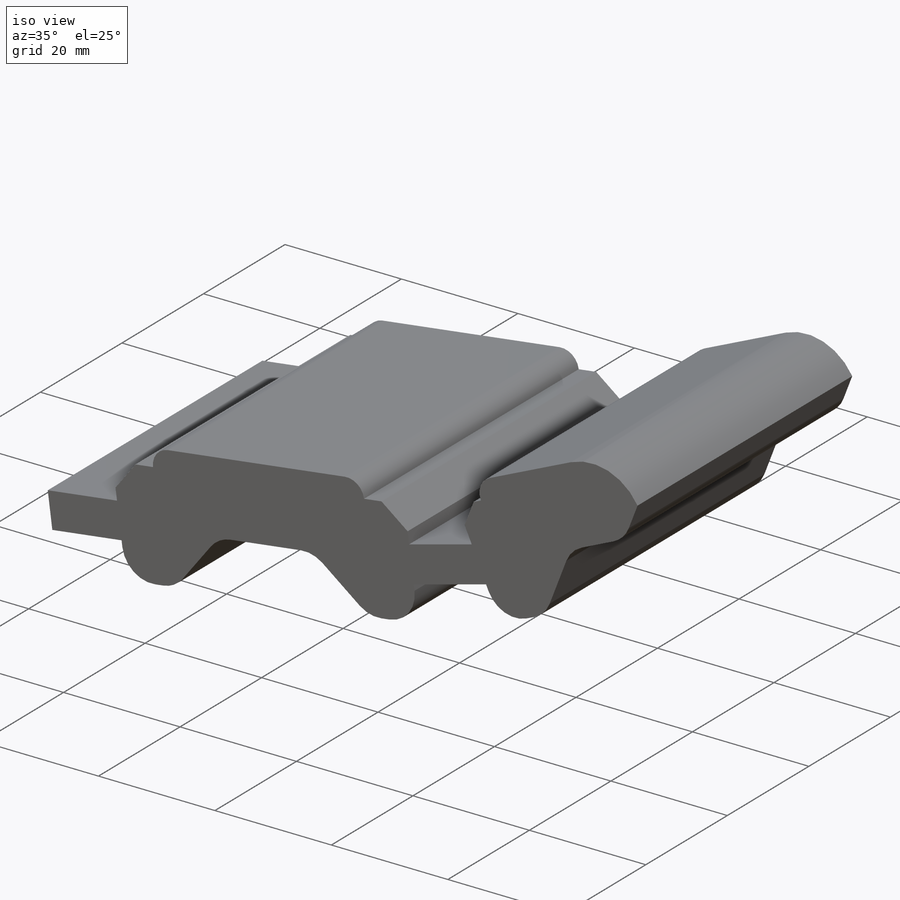
[diagram: iso view]
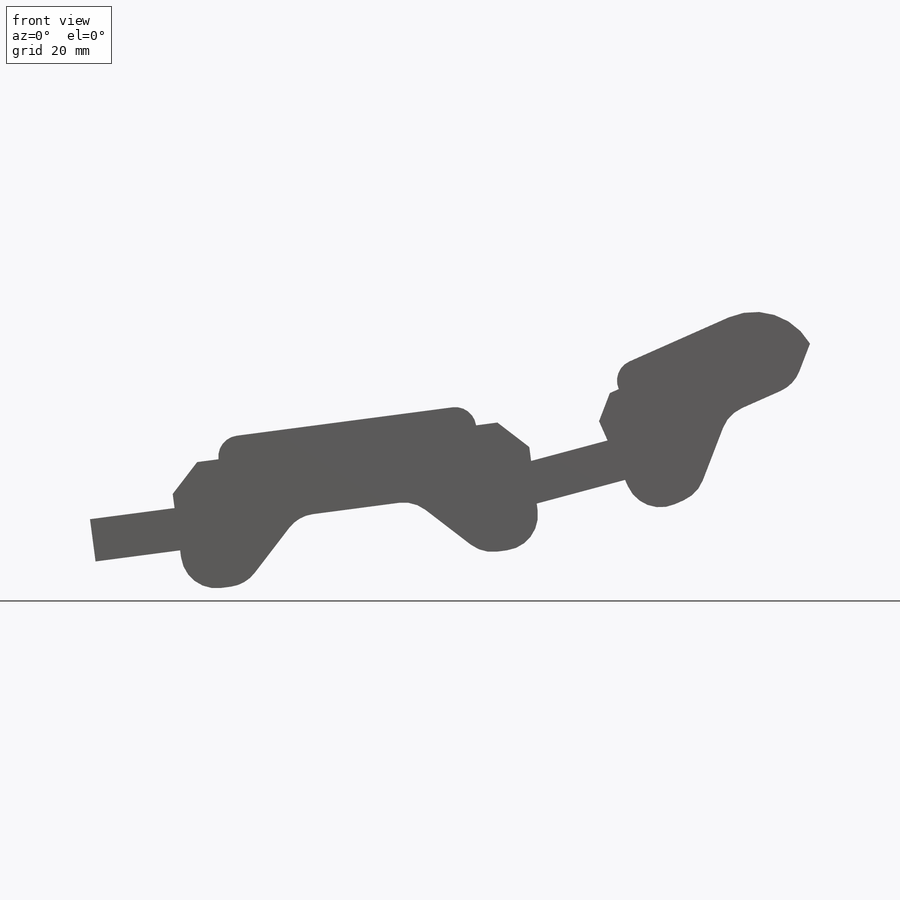
[diagram: front view]
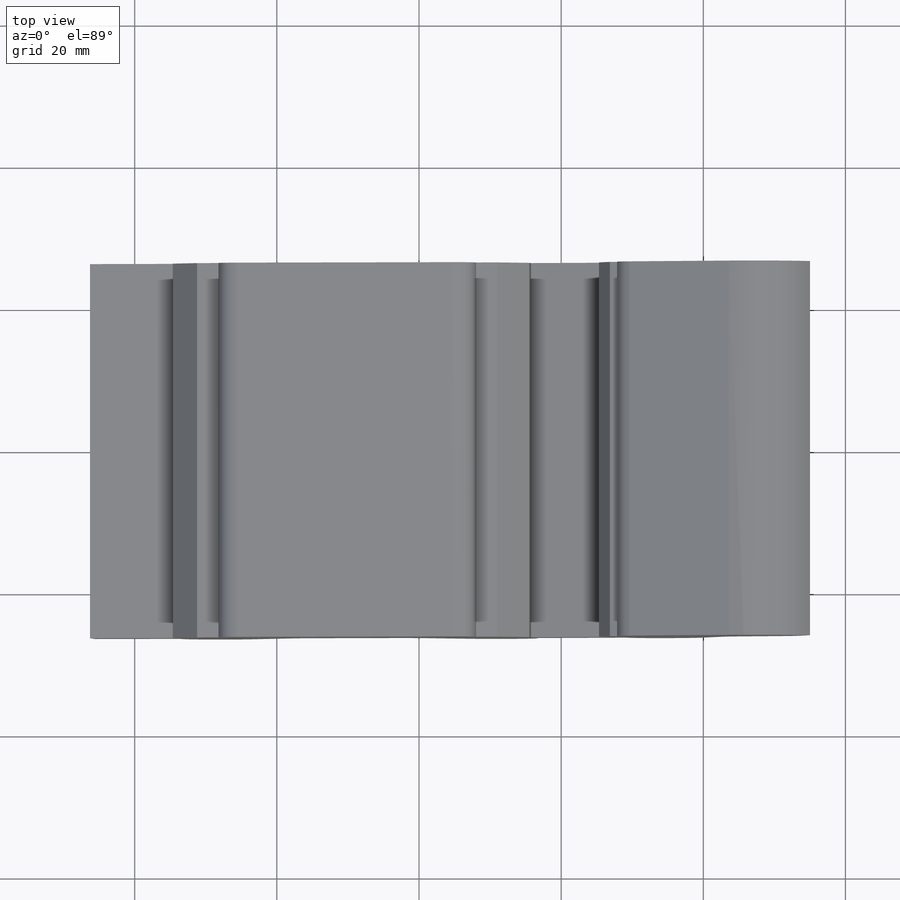
[diagram: top view]
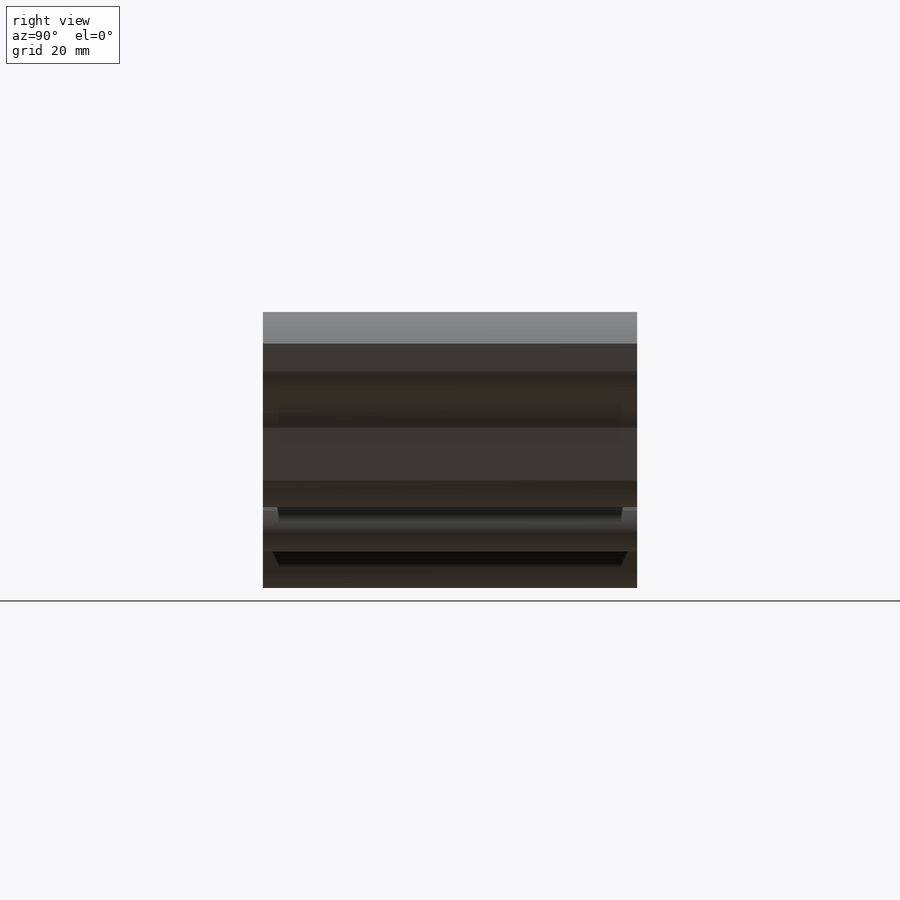
[diagram: right view]
SOLIDWORKS PART (.sldprt)
format: sldprt  version: not decoded by parser v0  size: 378,368 bytes
history: native  units: mm
features: sketch x5, fillet x5, extrude x3, cut_extrude x2, chamfer x2, material x1 (+13 scaffold rows collapsed)
feature tree (31):
  scaffold x13  (default folders/planes/origin — collapsed)
  material  "Material <not specified>"
  sketch  "Sketch1"  dims[c1.D1=37.5mm c1.D2=12.0mm c2.D1=6.0mm c2.D3=~61.312382mm c3.D3=7.5deg c3.D4=37.5mm c4.D4=7.5deg c4.D3=62.5mm c5.D4=37.5mm c5.D5=~50.799556mm c6.D5=7.5deg c6.D6=~50.60047mm c7.D6=15.0deg c7.D7=6.0mm c8.D7=7.5deg c8.D8=18.0mm c8.D9=18.0mm c8.D10=6.0mm c8.D11=12.0mm c8.D12=6.0mm c8.D13=6.0mm c9.D13=7.5deg c10.D13=3.0mm]
  extrude  "Boss-Extrude1"  Depth=52.66mm
  sketch  "Sketch2"  dims[c1.D1=8.5mm c1.D2=8.5mm c1.D3=~5.948669mm c2.D3=45.0deg c2.D4=~50.169749mm c3.D4=~1.901515deg c4.D4=9.39mm c4.D5=~33.602662mm]
  cut_extrude  "Cut-Extrude1"  [1 undecoded]
  fillet  "Fillet1"  Radius=5mm
  sketch  "Sketch3"  dims[D1=36.55mm D2=7.03mm D3=2.95mm D4=36.55mm]
  extrude  "Boss-Extrude2"  [1 undecoded]
  fillet  "Fillet2"  Radius=2.95mm
  chamfer  "Chamfer1"  Distance=4mm Angle=45deg
  sketch  "Sketch4"  dims[c1.D1=9.47mm c1.D2=~15.333476mm c2.D2=135.0deg c2.D3=8.5mm c2.D4=~13.282819mm c3.D4=45.0deg c3.D5=27.15mm c3.D6=10.12mm]
  cut_extrude  "Cut-Extrude2"  [1 undecoded]
  sketch  "Sketch6"  dims[D1=2.95mm D2=4.37mm D3=~27.191049mm]
  extrude  "Boss-Extrude3"  [1 undecoded]
  fillet  "Fillet3"  Radius=2.95mm
  fillet  "Fillet4"  Radius=9mm
  chamfer  "Chamfer2"  Distance=3mm Angle=45deg
  fillet  "Fillet5"  Radius=5mm
decode coverage: 13 of 17 modeling features carry decoded parameters
note: ~ marks probable driven/reference dimensions
note: 4 parameter values undecoded
summary: no parameter record found for 4 features
note: suppression state not decoded; provenance and decode notes live in map.json
